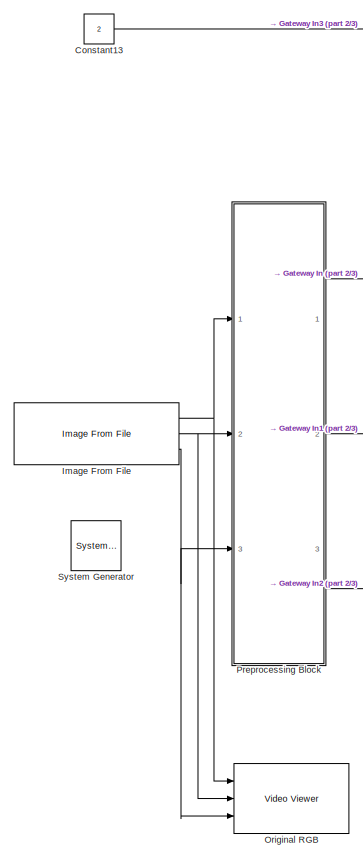
[diagram: root canvas - part 1/3, top left region]
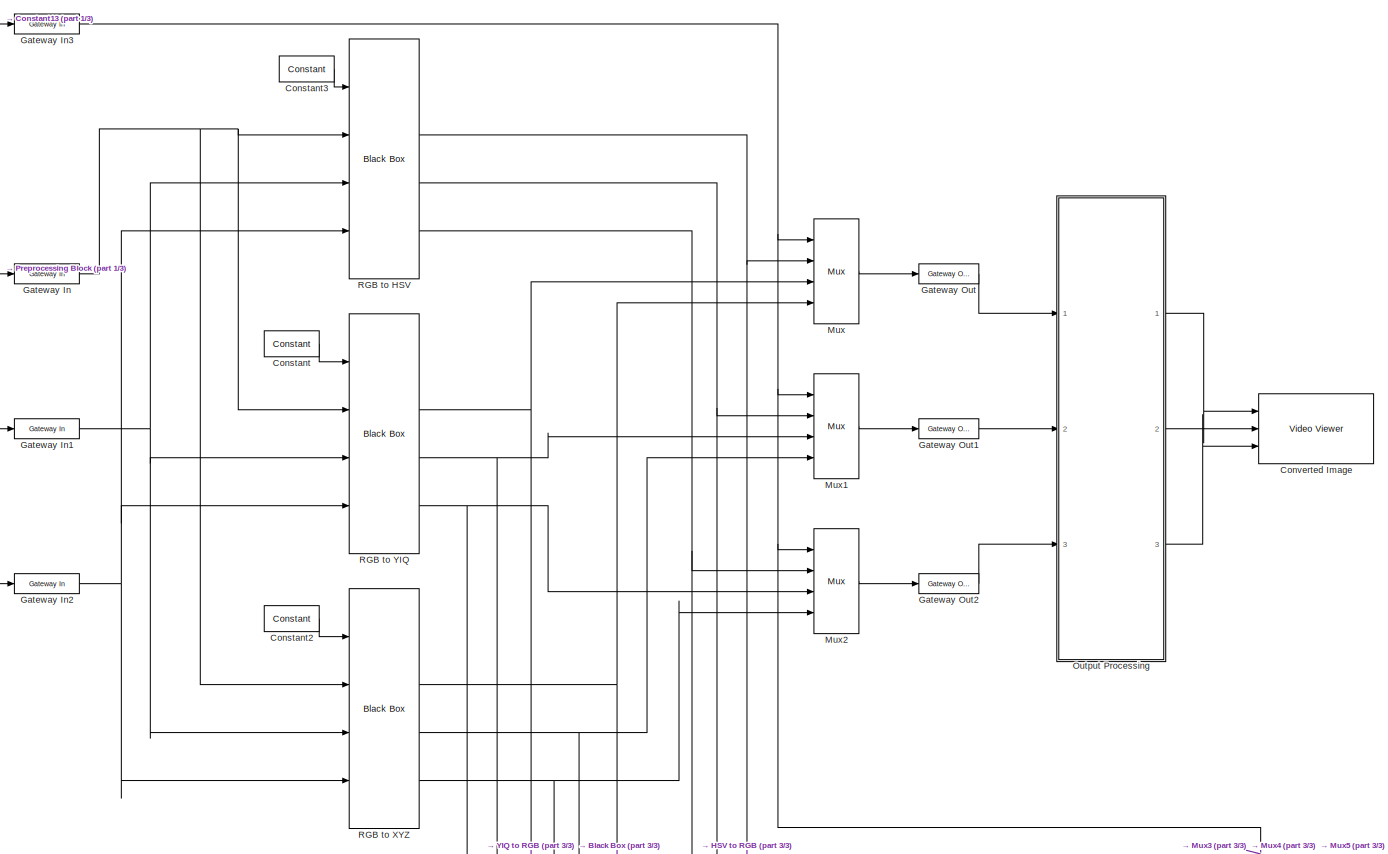
[diagram: root canvas - part 2/3, top center region]
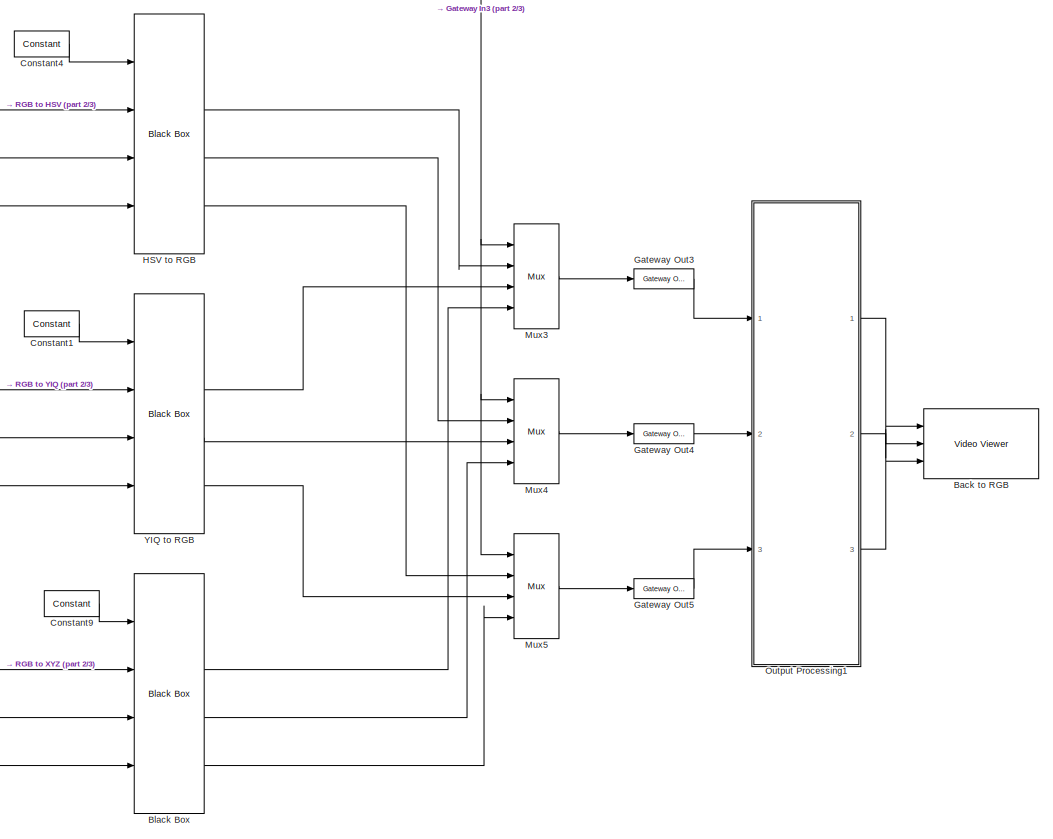
[diagram: root canvas - part 3/3, bottom right region]
MODEL slx_23adde108d3c
KIND model
BLOCK [Reference]  System Generator  REF=xbsIndex_r4/ System Generator
  AttributesFormatString = System\nGenerator
  Impl_file = ISE Defaults
  Ports = []
  SourceBlock = xbsIndex_r4/ System Generator
  SourceType = Xilinx System Generator Block
  Synth_file = XST Defaults
  Tag = genX
  UserDataPersistent = on
  block_type = sysgen
  clock_wrapper = Clock Enables
  core_generation = According to Block Masks
  dbl_ovrd = According to Block Masks
  dcm_input_clock_period = 10
  deprecated_control = off
  directory = ./netlist
  eval_field = 0
  has_advanced_control = 0
  incr_netlist = off
  infoedit = System Generator
  package = ff1156
  part = xc6vlx130t
  proj_type = Project Navigator
  run_coregen = off
  sg_icon_stat = 50,50,0,0,token,white,0,58c5b5770fe5f7c311f53dbc6e73f0f6,right,,[ ],[ ]
  sg_mask_display = fprintf('','COMMENT: begin icon graphics');\npatch([0 50 50 0 0 ],[0 0 50 50 0 ],[1 1 1 ]);\npatch([1.6375 16.81 27.31 37.81 48.31 27.31 12.1375 1.6375 ],[36.655 36.655 47.155 36.655 47.155 47.155 47.155 36.655 ],[0.933333 0.203922 0.141176 ]);\npatch([12.1375 27.31 16.81 1.6375 12.1375 ],[26.155 26.155 36.655 36.655 26.155 ],[0.698039 0.0313725 0.219608 ]);\npatch([1.6375 16.81 27.31 12.1375 1.6375 ]...<+327ch>
  sggui_pos = 691,174,464,470
  simulink_period = 1
  speed = -1
  synthesis_tool = XST
  sysclk_period = 10
  testbench = off
  trim_vbits = Everywhere in SubSystem
  xilinxfamily = virtex6
BLOCK [Reference] Back to RGB  REF=visionsinks/Video Viewer
  AxisZoom = on
  DefaultConfigurationName = vipscopes.VideoViewerScopeCfg
  FigPos = [230 612 675 424]
  OpenAtMdlStart = on
  Ports = [3]
  SourceBlock = visionsinks/Video Viewer
  SourceType = Video Viewer
  UserDataPersistent = on
  colormapValue = gray(256)
  imagePorts = Separate color signals
  inputType = Obsolete7b
  maxInputVal = 255
  minInputVal = 0
  specRange = off
  trueSizedOnce = off
  useColorMap = off
BLOCK [Reference] Black Box  REF=xbsIndex_r4/Black Box
  Ports = [4, 4]
  SourceBlock = xbsIndex_r4/Black Box
  SourceType = Xilinx Black Box Block
  block_type = blackbox2
  has_advanced_control = 0
  infoedit = Incorporates black box HDL and simulation model into a System Generator design.<br><br>You must supply a Black Box with certain information about the HDL component you would like to bring into System Generator. This information is provided through a Matlab function.<br><br>When "Simulation mode" is set to "Inactive", you will typically want to provide a separate simulation model by using a Simulat...<+126ch>  <repeated x6 — deduplicated; at blocks: Black Box, HSV to RGB, RGB to HSV, RGB to XYZ, RGB to YIQ, YIQ to RGB>
  init_code = xyztorgb_fixpt_xsgbbxcfg
  sg_icon_stat = 70,240,4,4,white,blue,0,538a15d7,right,,[ ],[ ]
  sg_mask_display = fprintf('','COMMENT: begin icon graphics');\npatch([0 70 70 0 0 ],[0 0 240 240 0 ],[0.77 0.82 0.91 ]);\nplot([0 70 70 0 0 ],[0 0 240 240 0 ]);\npatch([12.75 27.2 37.2 47.2 57.2 37.2 22.75 12.75 ],[131.1 131.1 141.1 131.1 141.1 141.1 141.1 131.1 ],[1 1 1 ]);\npatch([22.75 37.2 27.2 12.75 22.75 ],[121.1 121.1 131.1 131.1 121.1 ],[0.931 0.946 0.973 ]);\npatch([12.75 27.2 37.2 22.75 12.75 ],[111.1 111.1 12...<+612ch>  <repeated x5 — deduplicated; at blocks: Black Box, RGB to HSV, RGB to XYZ, RGB to YIQ, YIQ to RGB>
  sggui_pos = -1,-1,-1,-1
  sim_method = ISE Simulator
  verbose = off
  xl_area = [0,0,0,0,0,0,0]
  xl_use_area = off
BLOCK [Reference] Constant  REF=xbsIndex_r4/Constant
  Ports = [0, 1]
  SourceBlock = xbsIndex_r4/Constant
  SourceType = Xilinx Constant Block Block
  arith_type = Boolean
  bin_pt = 14
  block_type = constant
  carry = CIN
  const = 0
  dbl_ovrd = off
  dsp48_infoedit = The use of this block for DSP48 instructions is deprecated.  Please use the Opmode block.
  equ = P=C
  exp_width = 8
  explicit_period = off
  frac_width = 24
  gui_display_data_type = Boolean
  has_advanced_control = 0
  inp1 = P
  inp2 = PCIN>>17
  n_bits = 16
  opr = +
  opselect = C
  period = 1
  preci_type = Single
  sg_icon_stat = 55,26,0,1,white,blue,0,bf4ddd8b,right,,[ ],[ ]
  sg_mask_display = fprintf('','COMMENT: begin icon graphics');\npatch([0 55 55 0 0 ],[0 0 26 26 0 ],[0.77 0.82 0.91 ]);\nplot([0 55 55 0 0 ],[0 0 26 26 0 ]);\npatch([20.325 24.66 27.66 30.66 33.66 27.66 23.325 20.325 ],[16.33 16.33 19.33 16.33 19.33 19.33 19.33 16.33 ],[1 1 1 ]);\npatch([23.325 27.66 24.66 20.325 23.325 ],[13.33 13.33 16.33 16.33 13.33 ],[0.931 0.946 0.973 ]);\npatch([20.325 24.66 27.66 23.325 20.325 ],[...<+323ch>  <repeated x6 — deduplicated; at blocks: Constant, Constant1, Constant2, Constant3, Constant4, Constant9>
  sggui_pos = -1,-1,-1,-1
BLOCK [Reference] Constant1  REF=xbsIndex_r4/Constant
  Ports = [0, 1]
  SourceBlock = xbsIndex_r4/Constant
  SourceType = Xilinx Constant Block Block
  arith_type = Boolean
  bin_pt = 14
  block_type = constant
  carry = CIN
  const = 0
  dbl_ovrd = off
  dsp48_infoedit = The use of this block for DSP48 instructions is deprecated.  Please use the Opmode block.
  equ = P=C
  exp_width = 8
  explicit_period = off
  frac_width = 24
  gui_display_data_type = Boolean
  has_advanced_control = 0
  inp1 = P
  inp2 = PCIN>>17
  n_bits = 16
  opr = +
  opselect = C
  period = 1
  preci_type = Single
  sg_icon_stat = 55,26,0,1,white,blue,0,bf4ddd8b,right,,[ ],[ ]
  sggui_pos = -1,-1,-1,-1
BLOCK [Constant] Constant13
  Value = 2
BLOCK [Reference] Constant2  REF=xbsIndex_r4/Constant
  Ports = [0, 1]
  SourceBlock = xbsIndex_r4/Constant
  SourceType = Xilinx Constant Block Block
  arith_type = Boolean
  bin_pt = 14
  block_type = constant
  carry = CIN
  const = 0
  dbl_ovrd = off
  dsp48_infoedit = The use of this block for DSP48 instructions is deprecated.  Please use the Opmode block.
  equ = P=C
  exp_width = 8
  explicit_period = off
  frac_width = 24
  gui_display_data_type = Boolean
  has_advanced_control = 0
  inp1 = P
  inp2 = PCIN>>17
  n_bits = 16
  opr = +
  opselect = C
  period = 1
  preci_type = Single
  sg_icon_stat = 55,26,0,1,white,blue,0,bf4ddd8b,right,,[ ],[ ]
  sggui_pos = -1,-1,-1,-1
BLOCK [Reference] Constant3  REF=xbsIndex_r4/Constant
  Ports = [0, 1]
  SourceBlock = xbsIndex_r4/Constant
  SourceType = Xilinx Constant Block Block
  arith_type = Boolean
  bin_pt = 14
  block_type = constant
  carry = CIN
  const = 0
  dbl_ovrd = off
  dsp48_infoedit = The use of this block for DSP48 instructions is deprecated.  Please use the Opmode block.
  equ = P=C
  exp_width = 8
  explicit_period = off
  frac_width = 24
  gui_display_data_type = Boolean
  has_advanced_control = 0
  inp1 = P
  inp2 = PCIN>>17
  n_bits = 16
  opr = +
  opselect = C
  period = 1
  preci_type = Single
  sg_icon_stat = 55,26,0,1,white,blue,0,bf4ddd8b,right,,[ ],[ ]
  sggui_pos = -1,-1,-1,-1
BLOCK [Reference] Constant4  REF=xbsIndex_r4/Constant
  Ports = [0, 1]
  SourceBlock = xbsIndex_r4/Constant
  SourceType = Xilinx Constant Block Block
  arith_type = Boolean
  bin_pt = 14
  block_type = constant
  carry = CIN
  const = 0
  dbl_ovrd = off
  dsp48_infoedit = The use of this block for DSP48 instructions is deprecated.  Please use the Opmode block.
  equ = P=C
  exp_width = 8
  explicit_period = off
  frac_width = 24
  gui_display_data_type = Boolean
  has_advanced_control = 0
  inp1 = P
  inp2 = PCIN>>17
  n_bits = 16
  opr = +
  opselect = C
  period = 1
  preci_type = Single
  sg_icon_stat = 55,26,0,1,white,blue,0,bf4ddd8b,right,,[ ],[ ]
  sggui_pos = -1,-1,-1,-1
BLOCK [Reference] Constant9  REF=xbsIndex_r4/Constant
  Ports = [0, 1]
  SourceBlock = xbsIndex_r4/Constant
  SourceType = Xilinx Constant Block Block
  arith_type = Boolean
  bin_pt = 14
  block_type = constant
  carry = CIN
  const = 0
  dbl_ovrd = off
  dsp48_infoedit = The use of this block for DSP48 instructions is deprecated.  Please use the Opmode block.
  equ = P=C
  exp_width = 8
  explicit_period = off
  frac_width = 24
  gui_display_data_type = Boolean
  has_advanced_control = 0
  inp1 = P
  inp2 = PCIN>>17
  n_bits = 16
  opr = +
  opselect = C
  period = 1
  preci_type = Single
  sg_icon_stat = 55,26,0,1,white,blue,0,bf4ddd8b,right,,[ ],[ ]
  sggui_pos = -1,-1,-1,-1
BLOCK [Reference] Converted Image  REF=visionsinks/Video Viewer
  AxisZoom = on
  DefaultConfigurationName = vipscopes.VideoViewerScopeCfg
  FigPos = [233 598 647 463]
  OpenAtMdlStart = on
  Ports = [3]
  SourceBlock = visionsinks/Video Viewer
  SourceType = Video Viewer
  UserDataPersistent = on
  colormapValue = gray(256)
  imagePorts = Separate color signals
  inputType = Obsolete7b
  maxInputVal = 255
  minInputVal = 0
  specRange = off
  trueSizedOnce = off
  useColorMap = off
BLOCK [Reference] Gateway In  REF=xbsIndex_r4/Gateway In
  ADCChannel = '1'
  LOCs = {}
  Ports = [1, 1]
  SourceBlock = xbsIndex_r4/Gateway In
  SourceType = Xilinx Gateway In Block
  UseAsADC = off
  arith_type = Unsigned
  bin_pt = 0
  block_type = gatewayin
  dbl_ovrd = off
  exp_width = 8
  frac_width = 24
  gui_display_data_type = Fixed-point
  has_advanced_control = 0
  hdl_port = on
  infoedit = Gateway in block.  Converts inputs of type Simulink integer, single, double and fixed-point to  Xilinx fixed-point or floating-point data type.<br><br>Hardware notes:  In hardware these blocks become top level input ports.  <repeated x4 — deduplicated; at blocks: Gateway In, Gateway In1, Gateway In2, Gateway In3>
  inherit_from_input = off
  locs_specified = off
  n_bits = 8
  overflow = Saturate
  period = 1
  preci_type = Double
  quantization = Round  (unbiased: +/- Inf)
  sg_icon_stat = 65,20,1,1,white,yellow,1,00d3666e,right,,[ ],[ ]
  sg_mask_display = fprintf('','COMMENT: begin icon graphics');\npatch([0 65 65 0 0 ],[0 0 20 20 0 ],[0.95 0.93 0.65 ]);\nplot([0 65 65 0 0 ],[0 0 20 20 0 ]);\npatch([27.55 30.44 32.44 34.44 36.44 32.44 29.55 27.55 ],[12.22 12.22 14.22 12.22 14.22 14.22 14.22 12.22 ],[1 1 1 ]);\npatch([29.55 32.44 30.44 27.55 29.55 ],[10.22 10.22 12.22 12.22 10.22 ],[0.985 0.979 0.895 ]);\npatch([27.55 30.44 32.44 29.55 27.55 ],[8.22 8.22...<+383ch>  <repeated x4 — deduplicated; at blocks: Gateway In, Gateway In1, Gateway In2, Gateway In3>
  sggui_pos = -1,-1,-1,-1
  timing_constraint = None
  xl_area = [0,0,0,0,0,0,0]
  xl_use_area = off
BLOCK [Reference] Gateway In1  REF=xbsIndex_r4/Gateway In
  ADCChannel = '1'
  LOCs = {}
  Ports = [1, 1]
  SourceBlock = xbsIndex_r4/Gateway In
  SourceType = Xilinx Gateway In Block
  UseAsADC = off
  arith_type = Unsigned
  bin_pt = 0
  block_type = gatewayin
  dbl_ovrd = off
  exp_width = 8
  frac_width = 24
  gui_display_data_type = Fixed-point
  has_advanced_control = 0
  hdl_port = on
  inherit_from_input = off
  locs_specified = off
  n_bits = 8
  overflow = Saturate
  period = 1
  preci_type = Double
  quantization = Round  (unbiased: +/- Inf)
  sg_icon_stat = 65,20,1,1,white,yellow,1,00d3666e,right,,[ ],[ ]
  sggui_pos = -1,-1,-1,-1
  timing_constraint = None
  xl_area = [0,0,0,0,0,0,0]
  xl_use_area = off
BLOCK [Reference] Gateway In2  REF=xbsIndex_r4/Gateway In
  ADCChannel = '1'
  LOCs = {}
  Ports = [1, 1]
  SourceBlock = xbsIndex_r4/Gateway In
  SourceType = Xilinx Gateway In Block
  UseAsADC = off
  arith_type = Unsigned
  bin_pt = 0
  block_type = gatewayin
  dbl_ovrd = off
  exp_width = 8
  frac_width = 24
  gui_display_data_type = Fixed-point
  has_advanced_control = 0
  hdl_port = on
  inherit_from_input = off
  locs_specified = off
  n_bits = 8
  overflow = Saturate
  period = 1
  preci_type = Double
  quantization = Round  (unbiased: +/- Inf)
  sg_icon_stat = 65,20,1,1,white,yellow,1,00d3666e,right,,[ ],[ ]
  sggui_pos = -1,-1,-1,-1
  timing_constraint = None
  xl_area = [0,0,0,0,0,0,0]
  xl_use_area = off
BLOCK [Reference] Gateway In3  REF=xbsIndex_r4/Gateway In
  ADCChannel = '1'
  LOCs = {}
  Ports = [1, 1]
  SourceBlock = xbsIndex_r4/Gateway In
  SourceType = Xilinx Gateway In Block
  UseAsADC = off
  arith_type = Unsigned
  bin_pt = 0
  block_type = gatewayin
  dbl_ovrd = off
  exp_width = 8
  frac_width = 24
  gui_display_data_type = Fixed-point
  has_advanced_control = 0
  hdl_port = on
  inherit_from_input = off
  locs_specified = off
  n_bits = 2
  overflow = Saturate
  period = 1
  preci_type = Single
  quantization = Round  (unbiased: +/- Inf)
  sg_icon_stat = 65,20,1,1,white,yellow,1,00d3666e,right,,[ ],[ ]
  sggui_pos = -1,-1,-1,-1
  timing_constraint = None
  xl_area = [0,0,0,0,0,0,0]
  xl_use_area = off
BLOCK [Reference] Gateway Out  REF=xbsIndex_r4/Gateway Out
  DACChannel = '1'
  LOCs = {}
  Ports = [1, 1]
  SourceBlock = xbsIndex_r4/Gateway Out
  SourceType = Xilinx Gateway Out Block
  UseAsDAC = off
  block_type = gatewayout
  has_advanced_control = 0
  hdl_port = on
  infoedit = Gateway out block.  Converts Xilinx fixed-point or floating-point type inputs into ouputs of type Simulink integer, single, double, or fixed-point.<br><br>Hardware notes:  In hardware these blocks become top level output ports or are discarded, depending on how they are configured.  <repeated x6 — deduplicated; at blocks: Gateway Out, Gateway Out1, Gateway Out2, Gateway Out3, Gateway Out4, Gateway Out5>
  inherit_from_input = on
  locs_specified = off
  sg_icon_stat = 60,20,1,1,white,yellow,1,cc31b7ac,right,,[ ],[ ]
  sg_mask_display = fprintf('','COMMENT: begin icon graphics');\npatch([0 60 60 0 0 ],[0 0 20 20 0 ],[0.95 0.93 0.65 ]);\nplot([0 60 60 0 0 ],[0 0 20 20 0 ]);\npatch([25.55 28.44 30.44 32.44 34.44 30.44 27.55 25.55 ],[12.22 12.22 14.22 12.22 14.22 14.22 14.22 12.22 ],[1 1 1 ]);\npatch([27.55 30.44 28.44 25.55 27.55 ],[10.22 10.22 12.22 12.22 10.22 ],[0.985 0.979 0.895 ]);\npatch([25.55 28.44 30.44 27.55 25.55 ],[8.22 8.22...<+384ch>  <repeated x6 — deduplicated; at blocks: Gateway Out, Gateway Out1, Gateway Out2, Gateway Out3, Gateway Out4, Gateway Out5>
  sggui_pos = -1,-1,-1,-1
  timing_constraint = None
  xl_area = [0,0,0,0,0,0,0]
  xl_use_area = off
BLOCK [Reference] Gateway Out1  REF=xbsIndex_r4/Gateway Out
  DACChannel = '1'
  LOCs = {}
  Ports = [1, 1]
  SourceBlock = xbsIndex_r4/Gateway Out
  SourceType = Xilinx Gateway Out Block
  UseAsDAC = off
  block_type = gatewayout
  has_advanced_control = 0
  hdl_port = on
  inherit_from_input = on
  locs_specified = off
  sg_icon_stat = 60,20,1,1,white,yellow,1,cc31b7ac,right,,[ ],[ ]
  sggui_pos = -1,-1,-1,-1
  timing_constraint = None
  xl_area = [0,0,0,0,0,0,0]
  xl_use_area = off
BLOCK [Reference] Gateway Out2  REF=xbsIndex_r4/Gateway Out
  DACChannel = '1'
  LOCs = {}
  Ports = [1, 1]
  SourceBlock = xbsIndex_r4/Gateway Out
  SourceType = Xilinx Gateway Out Block
  UseAsDAC = off
  block_type = gatewayout
  has_advanced_control = 0
  hdl_port = on
  inherit_from_input = on
  locs_specified = off
  sg_icon_stat = 60,20,1,1,white,yellow,1,cc31b7ac,right,,[ ],[ ]
  sggui_pos = -1,-1,-1,-1
  timing_constraint = None
  xl_area = [0,0,0,0,0,0,0]
  xl_use_area = off
BLOCK [Reference] Gateway Out3  REF=xbsIndex_r4/Gateway Out
  DACChannel = '1'
  LOCs = {}
  Ports = [1, 1]
  SourceBlock = xbsIndex_r4/Gateway Out
  SourceType = Xilinx Gateway Out Block
  UseAsDAC = off
  block_type = gatewayout
  has_advanced_control = 0
  hdl_port = on
  inherit_from_input = on
  locs_specified = off
  sg_icon_stat = 60,20,1,1,white,yellow,1,cc31b7ac,right,,[ ],[ ]
  sggui_pos = -1,-1,-1,-1
  timing_constraint = None
  xl_area = [0,0,0,0,0,0,0]
  xl_use_area = off
BLOCK [Reference] Gateway Out4  REF=xbsIndex_r4/Gateway Out
  DACChannel = '1'
  LOCs = {}
  Ports = [1, 1]
  SourceBlock = xbsIndex_r4/Gateway Out
  SourceType = Xilinx Gateway Out Block
  UseAsDAC = off
  block_type = gatewayout
  has_advanced_control = 0
  hdl_port = on
  inherit_from_input = on
  locs_specified = off
  sg_icon_stat = 60,20,1,1,white,yellow,1,cc31b7ac,right,,[ ],[ ]
  sggui_pos = -1,-1,-1,-1
  timing_constraint = None
  xl_area = [0,0,0,0,0,0,0]
  xl_use_area = off
BLOCK [Reference] Gateway Out5  REF=xbsIndex_r4/Gateway Out
  DACChannel = '1'
  LOCs = {}
  Ports = [1, 1]
  SourceBlock = xbsIndex_r4/Gateway Out
  SourceType = Xilinx Gateway Out Block
  UseAsDAC = off
  block_type = gatewayout
  has_advanced_control = 0
  hdl_port = on
  inherit_from_input = on
  locs_specified = off
  sg_icon_stat = 60,20,1,1,white,yellow,1,cc31b7ac,right,,[ ],[ ]
  sggui_pos = -1,-1,-1,-1
  timing_constraint = None
  xl_area = [0,0,0,0,0,0,0]
  xl_use_area = off
BLOCK [Reference] HSV to RGB  REF=xbsIndex_r4/Black Box
  Ports = [4, 4]
  SourceBlock = xbsIndex_r4/Black Box
  SourceType = Xilinx Black Box Block
  block_type = blackbox2
  has_advanced_control = 0
  init_code = hsvtorgb_fixpt_xsgbbxcfg
  sg_icon_stat = 70,240,4,4,white,blue,0,1a7c3cb8,right,,[ ],[ ]
  sg_mask_display = fprintf('','COMMENT: begin icon graphics');\npatch([0 70 70 0 0 ],[0 0 240 240 0 ],[0.77 0.82 0.91 ]);\nplot([0 70 70 0 0 ],[0 0 240 240 0 ]);\npatch([12.75 27.2 37.2 47.2 57.2 37.2 22.75 12.75 ],[131.1 131.1 141.1 131.1 141.1 141.1 141.1 131.1 ],[1 1 1 ]);\npatch([22.75 37.2 27.2 12.75 22.75 ],[121.1 121.1 131.1 131.1 121.1 ],[0.931 0.946 0.973 ]);\npatch([12.75 27.2 37.2 22.75 12.75 ],[111.1 111.1 12...<+618ch>
  sggui_pos = -1,-1,-1,-1
  sim_method = ISE Simulator
  verbose = off
  xl_area = [0,0,0,0,0,0,0]
  xl_use_area = off
BLOCK [Reference] Image From File  REF=visionsources/Image From File
  FileName = <userpath>\Documents\MATLAB\4440\peppers.png
  FractionLength = 15
  FractionLengthMode = User-defined
  ImageDataType = Inherit from input image
  OutPortLabels = R|G|B
  Ports = [0, 3]
  Signed = on
  SourceBlock = visionsources/Image From File
  SourceType = Image From File
  Tag = vipblks_nd
  Ts = inf
  WordLength = 16
  imagePorts = Separate color signals
  sdImageDataType = uint(8)
BLOCK [Reference] Mux  REF=xbsIndex_r4/Mux
  Ports = [4, 1]
  SourceBlock = xbsIndex_r4/Mux
  SourceType = Xilinx Bus Multiplexer Block
  arith_type = Unsigned
  bin_pt = 14
  block_type = mux
  dbl_ovrd = off
  en = off
  has_advanced_control = 0
  inputs = 3
  latency = 0
  n_bits = 16
  overflow = Wrap
  precision = Full
  quantization = Truncate
  sg_icon_stat = 45,105,4,1,white,blue,3,58b3489d,right,,[ ],[ ]
  sg_mask_display = fprintf('','COMMENT: begin icon graphics');\npatch([0 45 45 0 0 ],[0 15 90 105 0 ],[0.77 0.82 0.91 ]);\nplot([0 45 45 0 0 ],[0 15 90 105 0 ]);\npatch([8.65 17.32 23.32 29.32 35.32 23.32 14.65 8.65 ],[58.66 58.66 64.66 58.66 64.66 64.66 64.66 58.66 ],[1 1 1 ]);\npatch([14.65 23.32 17.32 8.65 14.65 ],[52.66 52.66 58.66 58.66 52.66 ],[0.931 0.946 0.973 ]);\npatch([8.65 17.32 23.32 14.65 8.65 ],[46.66 46.6...<+489ch>  <repeated x6 — deduplicated; at blocks: Mux, Mux1, Mux2, Mux3, Mux4, Mux5>
  sggui_pos = -1,-1,-1,-1
  xl_area = [0,0,0,0,0,0,0]
  xl_use_area = off
BLOCK [Reference] Mux1  REF=xbsIndex_r4/Mux
  Ports = [4, 1]
  SourceBlock = xbsIndex_r4/Mux
  SourceType = Xilinx Bus Multiplexer Block
  arith_type = Unsigned
  bin_pt = 14
  block_type = mux
  dbl_ovrd = off
  en = off
  has_advanced_control = 0
  inputs = 3
  latency = 0
  n_bits = 16
  overflow = Wrap
  precision = Full
  quantization = Truncate
  sg_icon_stat = 45,105,4,1,white,blue,3,58b3489d,right,,[ ],[ ]
  sggui_pos = -1,-1,-1,-1
  xl_area = [0,0,0,0,0,0,0]
  xl_use_area = off
BLOCK [Reference] Mux2  REF=xbsIndex_r4/Mux
  Ports = [4, 1]
  SourceBlock = xbsIndex_r4/Mux
  SourceType = Xilinx Bus Multiplexer Block
  arith_type = Unsigned
  bin_pt = 14
  block_type = mux
  dbl_ovrd = off
  en = off
  has_advanced_control = 0
  inputs = 3
  latency = 0
  n_bits = 16
  overflow = Wrap
  precision = Full
  quantization = Truncate
  sg_icon_stat = 45,105,4,1,white,blue,3,58b3489d,right,,[ ],[ ]
  sggui_pos = -1,-1,-1,-1
  xl_area = [0,0,0,0,0,0,0]
  xl_use_area = off
BLOCK [Reference] Mux3  REF=xbsIndex_r4/Mux
  Ports = [4, 1]
  SourceBlock = xbsIndex_r4/Mux
  SourceType = Xilinx Bus Multiplexer Block
  arith_type = Unsigned
  bin_pt = 14
  block_type = mux
  dbl_ovrd = off
  en = off
  has_advanced_control = 0
  inputs = 3
  latency = 0
  n_bits = 16
  overflow = Wrap
  precision = Full
  quantization = Truncate
  sg_icon_stat = 45,105,4,1,white,blue,3,58b3489d,right,,[ ],[ ]
  sggui_pos = -1,-1,-1,-1
  xl_area = [0,0,0,0,0,0,0]
  xl_use_area = off
BLOCK [Reference] Mux4  REF=xbsIndex_r4/Mux
  Ports = [4, 1]
  SourceBlock = xbsIndex_r4/Mux
  SourceType = Xilinx Bus Multiplexer Block
  arith_type = Unsigned
  bin_pt = 14
  block_type = mux
  dbl_ovrd = off
  en = off
  has_advanced_control = 0
  inputs = 3
  latency = 0
  n_bits = 16
  overflow = Wrap
  precision = Full
  quantization = Truncate
  sg_icon_stat = 45,105,4,1,white,blue,3,58b3489d,right,,[ ],[ ]
  sggui_pos = -1,-1,-1,-1
  xl_area = [0,0,0,0,0,0,0]
  xl_use_area = off
BLOCK [Reference] Mux5  REF=xbsIndex_r4/Mux
  Ports = [4, 1]
  SourceBlock = xbsIndex_r4/Mux
  SourceType = Xilinx Bus Multiplexer Block
  arith_type = Unsigned
  bin_pt = 14
  block_type = mux
  dbl_ovrd = off
  en = off
  has_advanced_control = 0
  inputs = 3
  latency = 0
  n_bits = 16
  overflow = Wrap
  precision = Full
  quantization = Truncate
  sg_icon_stat = 45,105,4,1,white,blue,3,58b3489d,right,,[ ],[ ]
  sggui_pos = -1,-1,-1,-1
  xl_area = [0,0,0,0,0,0,0]
  xl_use_area = off
BLOCK [Reference] Original RGB  REF=visionsinks/Video Viewer
  AxisZoom = on
  DefaultConfigurationName = vipscopes.VideoViewerScopeCfg
  FigPos = [800 621 504 461]
  OpenAtMdlStart = on
  Ports = [3]
  SourceBlock = visionsinks/Video Viewer
  SourceType = Video Viewer
  UserDataPersistent = on
  colormapValue = gray(256)
  imagePorts = Separate color signals
  inputType = Obsolete7b
  maxInputVal = 255
  minInputVal = 0
  specRange = off
  trueSizedOnce = off
  useColorMap = off
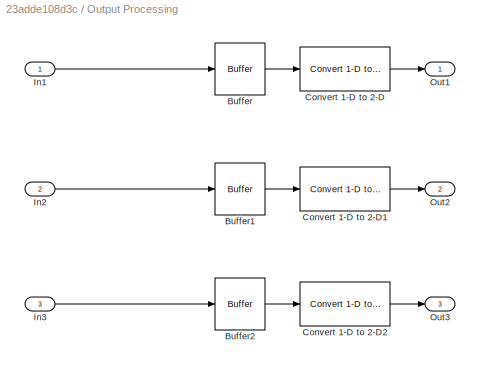
BLOCK [SubSystem] Output Processing
  FunctionWithSeparateData = off
  MaskHideContents = off
  MinAlgLoopOccurrences = off
  Opaque = off
  Ports = [3, 3]
  PropExecContextOutsideSubsystem = off
  RTWSystemCode = Auto
  RequestExecContextInheritance = off
BLOCK [Buffer] Output Processing/Buffer
  N = 384*512
  TreatMby1Signals = One channel
BLOCK [Buffer] Output Processing/Buffer1
  N = 384*512
  TreatMby1Signals = One channel
BLOCK [Buffer] Output Processing/Buffer2
  N = 384*512
  TreatMby1Signals = One channel
BLOCK [Reference] Output Processing/Convert 1-D to 2-D  REF=dspsigattribs/Convert 1-D to 2-D
  M = 384
  N = 512
  Ports = [1, 1]
  SourceBlock = dspsigattribs/Convert 1-D to 2-D
  SourceType = Convert 1-D to 2-D
  frameBasedOut = off
BLOCK [Reference] Output Processing/Convert 1-D to 2-D1  REF=dspsigattribs/Convert 1-D to 2-D
  M = 384
  N = 512
  Ports = [1, 1]
  SourceBlock = dspsigattribs/Convert 1-D to 2-D
  SourceType = Convert 1-D to 2-D
  frameBasedOut = off
BLOCK [Reference] Output Processing/Convert 1-D to 2-D2  REF=dspsigattribs/Convert 1-D to 2-D
  M = 384
  N = 512
  Ports = [1, 1]
  SourceBlock = dspsigattribs/Convert 1-D to 2-D
  SourceType = Convert 1-D to 2-D
  frameBasedOut = off
BLOCK [Inport] Output Processing/In1
  IconDisplay = Port number
BLOCK [Inport] Output Processing/In2
  IconDisplay = Port number
  Port = 2
BLOCK [Inport] Output Processing/In3
  IconDisplay = Port number
  Port = 3
BLOCK [Outport] Output Processing/Out1
  IconDisplay = Port number
BLOCK [Outport] Output Processing/Out2
  IconDisplay = Port number
  Port = 2
BLOCK [Outport] Output Processing/Out3
  IconDisplay = Port number
  Port = 3
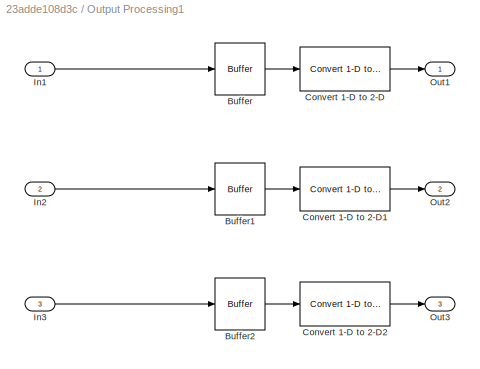
BLOCK [SubSystem] Output Processing1
  FunctionWithSeparateData = off
  MaskHideContents = off
  MinAlgLoopOccurrences = off
  Opaque = off
  Ports = [3, 3]
  PropExecContextOutsideSubsystem = off
  RTWSystemCode = Auto
  RequestExecContextInheritance = off
BLOCK [Buffer] Output Processing1/Buffer
  N = 384*512
  TreatMby1Signals = One channel
BLOCK [Buffer] Output Processing1/Buffer1
  N = 384*512
  TreatMby1Signals = One channel
BLOCK [Buffer] Output Processing1/Buffer2
  N = 384*512
  TreatMby1Signals = One channel
BLOCK [Reference] Output Processing1/Convert 1-D to 2-D  REF=dspsigattribs/Convert 1-D to 2-D
  M = 384
  N = 512
  Ports = [1, 1]
  SourceBlock = dspsigattribs/Convert 1-D to 2-D
  SourceType = Convert 1-D to 2-D
  frameBasedOut = off
BLOCK [Reference] Output Processing1/Convert 1-D to 2-D1  REF=dspsigattribs/Convert 1-D to 2-D
  M = 384
  N = 512
  Ports = [1, 1]
  SourceBlock = dspsigattribs/Convert 1-D to 2-D
  SourceType = Convert 1-D to 2-D
  frameBasedOut = off
BLOCK [Reference] Output Processing1/Convert 1-D to 2-D2  REF=dspsigattribs/Convert 1-D to 2-D
  M = 384
  N = 512
  Ports = [1, 1]
  SourceBlock = dspsigattribs/Convert 1-D to 2-D
  SourceType = Convert 1-D to 2-D
  frameBasedOut = off
BLOCK [Inport] Output Processing1/In1
  IconDisplay = Port number
BLOCK [Inport] Output Processing1/In2
  IconDisplay = Port number
  Port = 2
BLOCK [Inport] Output Processing1/In3
  IconDisplay = Port number
  Port = 3
BLOCK [Outport] Output Processing1/Out1
  IconDisplay = Port number
BLOCK [Outport] Output Processing1/Out2
  IconDisplay = Port number
  Port = 2
BLOCK [Outport] Output Processing1/Out3
  IconDisplay = Port number
  Port = 3
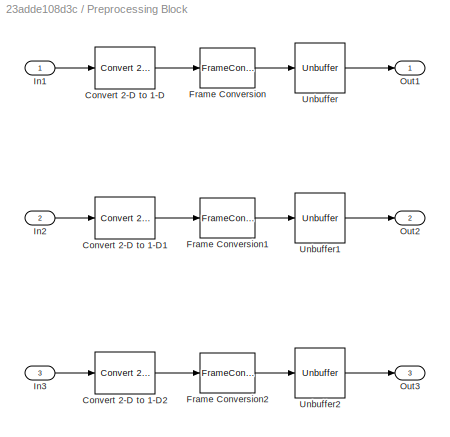
BLOCK [SubSystem] Preprocessing Block
  FunctionWithSeparateData = off
  MaskHideContents = off
  MinAlgLoopOccurrences = off
  Opaque = off
  Ports = [3, 3]
  PropExecContextOutsideSubsystem = off
  RTWSystemCode = Auto
  RequestExecContextInheritance = off
BLOCK [Reference] Preprocessing Block/Convert 2-D to 1-D  REF=dspsigattribs/Convert 2-D to 1-D
  Ports = [1, 1]
  SourceBlock = dspsigattribs/Convert 2-D to 1-D
  SourceType = Convert 2-D to 1-D
BLOCK [Reference] Preprocessing Block/Convert 2-D to 1-D1  REF=dspsigattribs/Convert 2-D to 1-D
  Ports = [1, 1]
  SourceBlock = dspsigattribs/Convert 2-D to 1-D
  SourceType = Convert 2-D to 1-D
BLOCK [Reference] Preprocessing Block/Convert 2-D to 1-D2  REF=dspsigattribs/Convert 2-D to 1-D
  Ports = [1, 1]
  SourceBlock = dspsigattribs/Convert 2-D to 1-D
  SourceType = Convert 2-D to 1-D
BLOCK [FrameConversion] Preprocessing Block/Frame Conversion
  Ports = [1, 1]
BLOCK [FrameConversion] Preprocessing Block/Frame Conversion1
  Ports = [1, 1]
BLOCK [FrameConversion] Preprocessing Block/Frame Conversion2
  Ports = [1, 1]
BLOCK [Inport] Preprocessing Block/In1
  IconDisplay = Port number
BLOCK [Inport] Preprocessing Block/In2
  IconDisplay = Port number
  Port = 2
BLOCK [Inport] Preprocessing Block/In3
  IconDisplay = Port number
  Port = 3
BLOCK [Outport] Preprocessing Block/Out1
  IconDisplay = Port number
BLOCK [Outport] Preprocessing Block/Out2
  IconDisplay = Port number
  Port = 2
BLOCK [Outport] Preprocessing Block/Out3
  IconDisplay = Port number
  Port = 3
BLOCK [Unbuffer] Preprocessing Block/Unbuffer
  Ports = [1, 1]
  SampleBasedProcessing = Same as frame based
BLOCK [Unbuffer] Preprocessing Block/Unbuffer1
  Ports = [1, 1]
  SampleBasedProcessing = Same as frame based
BLOCK [Unbuffer] Preprocessing Block/Unbuffer2
  Ports = [1, 1]
  SampleBasedProcessing = Same as frame based
BLOCK [Reference] RGB to HSV  REF=xbsIndex_r4/Black Box
  Ports = [4, 4]
  SourceBlock = xbsIndex_r4/Black Box
  SourceType = Xilinx Black Box Block
  block_type = blackbox2
  has_advanced_control = 0
  init_code = rgbtohsv_fixpt_xsgbbxcfg
  sg_icon_stat = 70,240,4,4,white,blue,0,581b4ef8,right,,[ ],[ ]
  sggui_pos = -1,-1,-1,-1
  sim_method = ISE Simulator
  verbose = off
  xl_area = [0,0,0,0,0,0,0]
  xl_use_area = off
BLOCK [Reference] RGB to XYZ  REF=xbsIndex_r4/Black Box
  Ports = [4, 4]
  SourceBlock = xbsIndex_r4/Black Box
  SourceType = Xilinx Black Box Block
  block_type = blackbox2
  has_advanced_control = 0
  init_code = rgbtoxyz_fixpt_xsgbbxcfg
  sg_icon_stat = 70,240,4,4,white,blue,0,a6949233,right,,[ ],[ ]
  sggui_pos = -1,-1,-1,-1
  sim_method = ISE Simulator
  verbose = off
  xl_area = [0,0,0,0,0,0,0]
  xl_use_area = off
BLOCK [Reference] RGB to YIQ  REF=xbsIndex_r4/Black Box
  Ports = [4, 4]
  SourceBlock = xbsIndex_r4/Black Box
  SourceType = Xilinx Black Box Block
  block_type = blackbox2
  has_advanced_control = 0
  init_code = rgbtoyiq_fixpt_xsgbbxcfg
  sg_icon_stat = 70,240,4,4,white,blue,0,29c2590f,right,,[ ],[ ]
  sggui_pos = -1,-1,-1,-1
  sim_method = ISE Simulator
  verbose = off
  xl_area = [0,0,0,0,0,0,0]
  xl_use_area = off
BLOCK [Reference] YIQ to RGB  REF=xbsIndex_r4/Black Box
  Ports = [4, 4]
  SourceBlock = xbsIndex_r4/Black Box
  SourceType = Xilinx Black Box Block
  block_type = blackbox2
  has_advanced_control = 0
  init_code = yiqtorgb_fixpt_xsgbbxcfg
  sg_icon_stat = 70,240,4,4,white,blue,0,85451f7e,right,,[ ],[ ]
  sggui_pos = -1,-1,-1,-1
  sim_method = ISE Simulator
  verbose = off
  xl_area = [0,0,0,0,0,0,0]
  xl_use_area = off
LINE Black Box:2 -> Mux3:4
LINE Black Box:3 -> Mux4:4
LINE Black Box:4 -> Mux5:4
LINE Constant13:1 -> Gateway In3:1
LINE Constant1:1 -> YIQ to RGB:1
LINE Constant2:1 -> RGB to XYZ:1
LINE Constant3:1 -> RGB to HSV:1
LINE Constant4:1 -> HSV to RGB:1
LINE Constant9:1 -> Black Box:1
LINE Constant:1 -> RGB to YIQ:1
NET Gateway In1:1 -> RGB to HSV:3, RGB to XYZ:3, RGB to YIQ:3
NET Gateway In2:1 -> RGB to HSV:4, RGB to XYZ:4, RGB to YIQ:4
NET Gateway In3:1 -> Mux1:1, Mux2:1, Mux3:1, Mux4:1, Mux5:1, Mux:1
NET Gateway In:1 -> RGB to HSV:2, RGB to XYZ:2, RGB to YIQ:2
LINE Gateway Out1:1 -> Output Processing:2
LINE Gateway Out2:1 -> Output Processing:3
LINE Gateway Out3:1 -> Output Processing1:1
LINE Gateway Out4:1 -> Output Processing1:2
LINE Gateway Out5:1 -> Output Processing1:3
LINE Gateway Out:1 -> Output Processing:1
LINE HSV to RGB:2 -> Mux3:2
LINE HSV to RGB:3 -> Mux4:2
LINE HSV to RGB:4 -> Mux5:2
NET Image From File:1 -> Original RGB:1, Preprocessing Block:1
NET Image From File:2 -> Original RGB:2, Preprocessing Block:2
NET Image From File:3 -> Original RGB:3, Preprocessing Block:3
LINE Mux1:1 -> Gateway Out1:1
LINE Mux2:1 -> Gateway Out2:1
LINE Mux3:1 -> Gateway Out3:1
LINE Mux4:1 -> Gateway Out4:1
LINE Mux5:1 -> Gateway Out5:1
LINE Mux:1 -> Gateway Out:1
LINE Output Processing/Buffer1:1 -> Output Processing/Convert 1-D to 2-D1:1
LINE Output Processing/Buffer2:1 -> Output Processing/Convert 1-D to 2-D2:1
LINE Output Processing/Buffer:1 -> Output Processing/Convert 1-D to 2-D:1
LINE Output Processing/Convert 1-D to 2-D1:1 -> Output Processing/Out2:1
LINE Output Processing/Convert 1-D to 2-D2:1 -> Output Processing/Out3:1
LINE Output Processing/Convert 1-D to 2-D:1 -> Output Processing/Out1:1
LINE Output Processing/In1:1 -> Output Processing/Buffer:1
LINE Output Processing/In2:1 -> Output Processing/Buffer1:1
LINE Output Processing/In3:1 -> Output Processing/Buffer2:1
LINE Output Processing1/Buffer1:1 -> Output Processing1/Convert 1-D to 2-D1:1
LINE Output Processing1/Buffer2:1 -> Output Processing1/Convert 1-D to 2-D2:1
LINE Output Processing1/Buffer:1 -> Output Processing1/Convert 1-D to 2-D:1
LINE Output Processing1/Convert 1-D to 2-D1:1 -> Output Processing1/Out2:1
LINE Output Processing1/Convert 1-D to 2-D2:1 -> Output Processing1/Out3:1
LINE Output Processing1/Convert 1-D to 2-D:1 -> Output Processing1/Out1:1
LINE Output Processing1/In1:1 -> Output Processing1/Buffer:1
LINE Output Processing1/In2:1 -> Output Processing1/Buffer1:1
LINE Output Processing1/In3:1 -> Output Processing1/Buffer2:1
LINE Output Processing1:1 -> Back to RGB:1
LINE Output Processing1:2 -> Back to RGB:2
LINE Output Processing1:3 -> Back to RGB:3
LINE Output Processing:1 -> Converted Image:1
LINE Output Processing:2 -> Converted Image:2
LINE Output Processing:3 -> Converted Image:3
LINE Preprocessing Block/Convert 2-D to 1-D1:1 -> Preprocessing Block/Frame Conversion1:1
LINE Preprocessing Block/Convert 2-D to 1-D2:1 -> Preprocessing Block/Frame Conversion2:1
LINE Preprocessing Block/Convert 2-D to 1-D:1 -> Preprocessing Block/Frame Conversion:1
LINE Preprocessing Block/Frame Conversion1:1 -> Preprocessing Block/Unbuffer1:1
LINE Preprocessing Block/Frame Conversion2:1 -> Preprocessing Block/Unbuffer2:1
LINE Preprocessing Block/Frame Conversion:1 -> Preprocessing Block/Unbuffer:1
LINE Preprocessing Block/In1:1 -> Preprocessing Block/Convert 2-D to 1-D:1
LINE Preprocessing Block/In2:1 -> Preprocessing Block/Convert 2-D to 1-D1:1
LINE Preprocessing Block/In3:1 -> Preprocessing Block/Convert 2-D to 1-D2:1
LINE Preprocessing Block/Unbuffer1:1 -> Preprocessing Block/Out2:1
LINE Preprocessing Block/Unbuffer2:1 -> Preprocessing Block/Out3:1
LINE Preprocessing Block/Unbuffer:1 -> Preprocessing Block/Out1:1
LINE Preprocessing Block:1 -> Gateway In:1
LINE Preprocessing Block:2 -> Gateway In1:1
LINE Preprocessing Block:3 -> Gateway In2:1
NET RGB to HSV:2 -> HSV to RGB:2, Mux:2
NET RGB to HSV:3 -> HSV to RGB:3, Mux1:2
NET RGB to HSV:4 -> HSV to RGB:4, Mux2:2
NET RGB to XYZ:2 -> Black Box:2, Mux:4
NET RGB to XYZ:3 -> Black Box:3, Mux1:4
NET RGB to XYZ:4 -> Black Box:4, Mux2:4
NET RGB to YIQ:2 -> Mux:3, YIQ to RGB:2
NET RGB to YIQ:3 -> Mux1:3, YIQ to RGB:3
NET RGB to YIQ:4 -> Mux2:3, YIQ to RGB:4
LINE YIQ to RGB:2 -> Mux3:3
LINE YIQ to RGB:3 -> Mux4:3
LINE YIQ to RGB:4 -> Mux5:3
note: NET lines group one-source signal fan-out (src -> all destinations, sorted); 1:1 wires keep LINE
